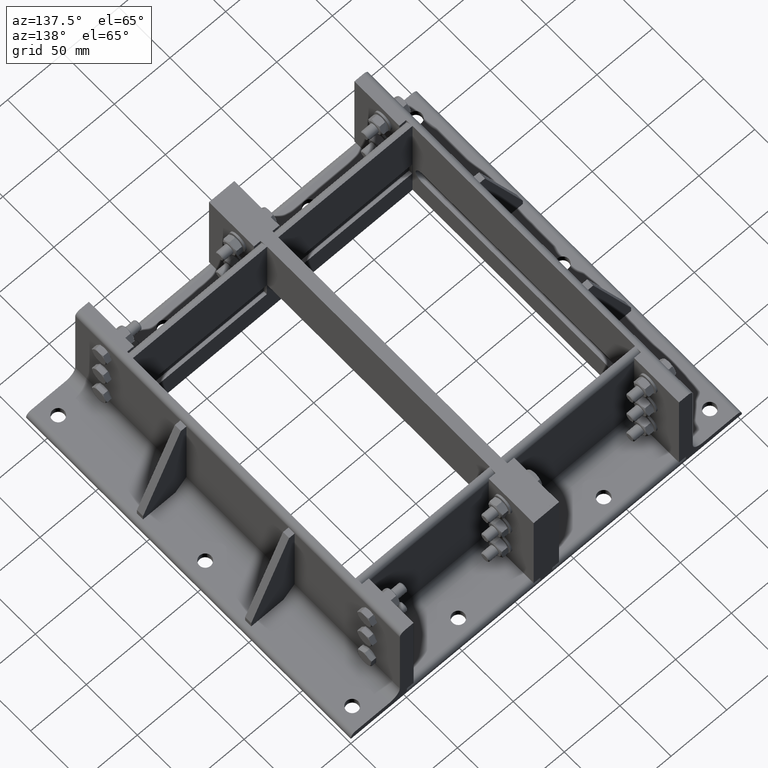
[diagram: clean part render]
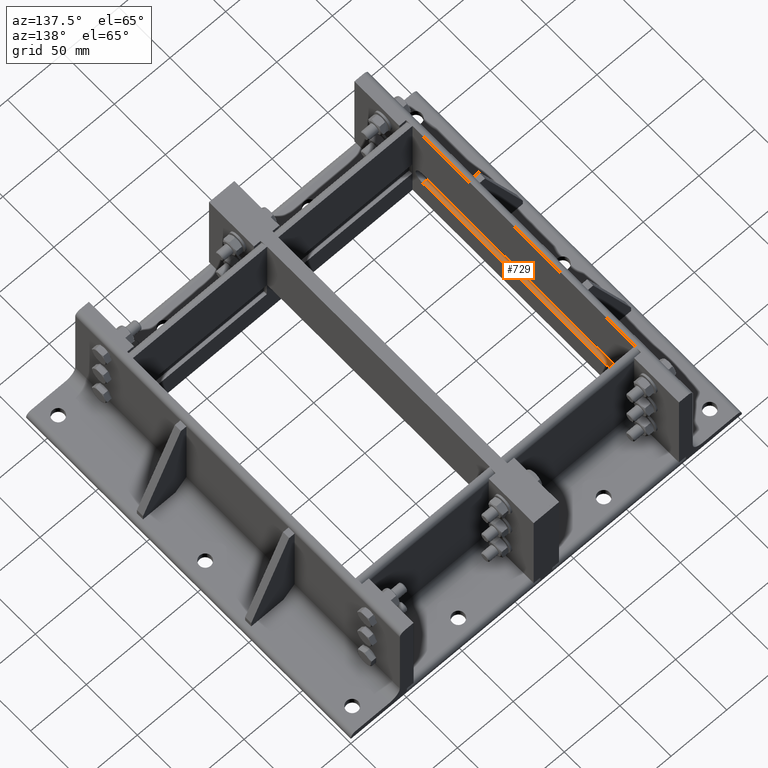
[diagram: same view with one face highlighted and labeled with its STEP entity id]
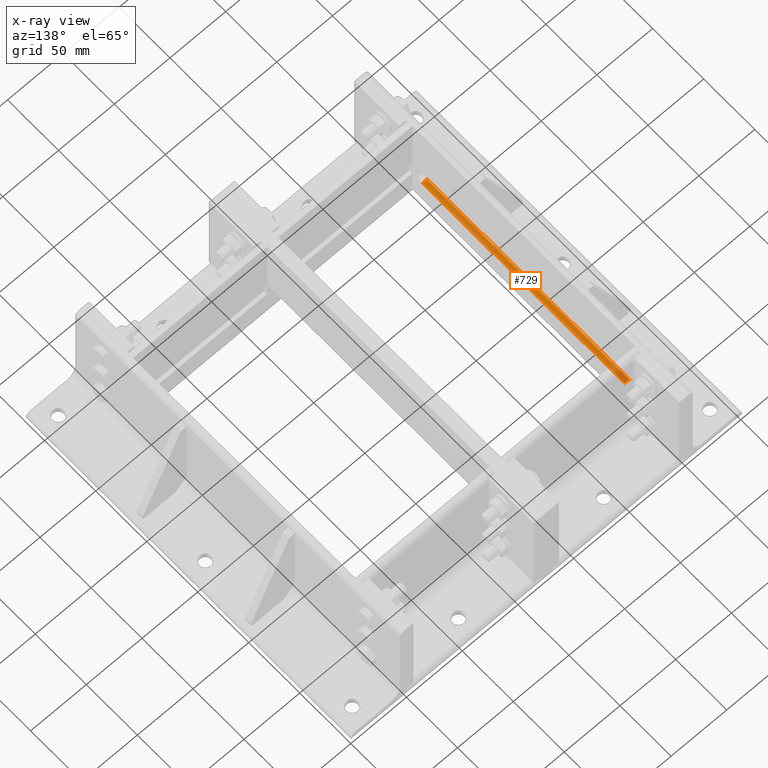
[diagram: x-ray of the same camera — body ghosted, the highlighted face saturated]
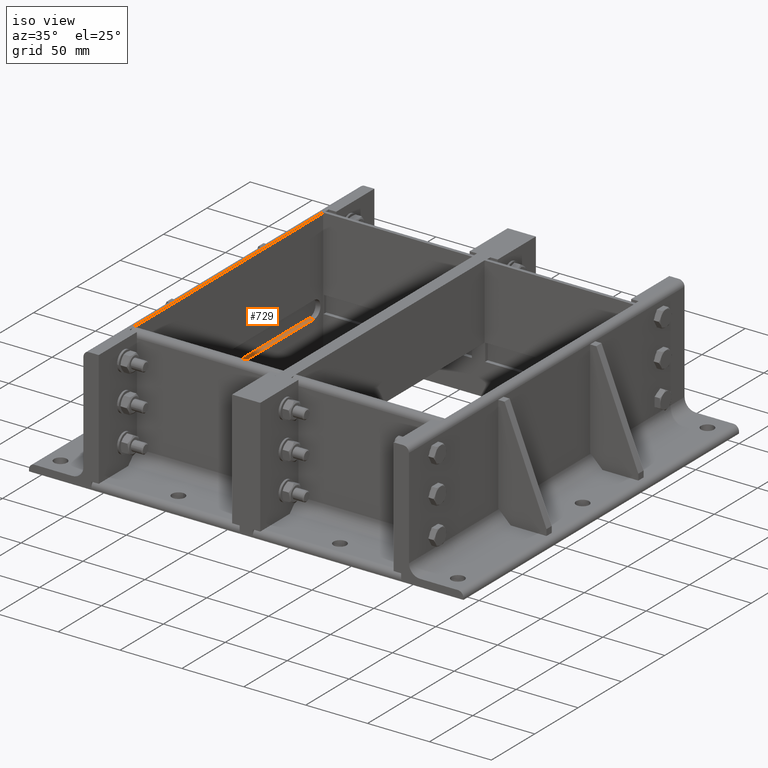
[diagram: same view with one face highlighted and labeled with its STEP entity id]
A machine part, auxiliary view. The second image highlights one B-rep face of the part: STEP entity #729.
The next image is the same camera in x-ray: the body ghosted, the highlighted face saturated — about 8% of this face is hidden behind the body in this view.
A second angle (iso view) of the same face is appended — the face is thin or edge-on in the first view.
In plain terms, the highlighted planar face has unit normal (0, 0, -1).
Its self-contained STEP definition (entity closure, byte-faithful):
#690=CARTESIAN_POINT('',(3.175238E-015,60.0,26.000000000000032));
#691=DIRECTION('',(0.0,0.0,-1.0));
#692=DIRECTION('',(0.0,1.0,0.0));
#693=AXIS2_PLACEMENT_3D('',#690,#691,#692);
#694=PLANE('',#693);
#695=CARTESIAN_POINT('',(3.175238E-015,60.0,26.000000000000032));
#696=VERTEX_POINT('',#695);
#697=CARTESIAN_POINT('',(3.175238E-015,258.0,26.0));
#698=VERTEX_POINT('',#697);
#699=CARTESIAN_POINT('',(3.175238E-015,60.0,26.000000000000032));
#700=DIRECTION('',(0.0,1.0,0.0));
#701=VECTOR('',#700,198.0);
#702=LINE('',#699,#701);
#703=EDGE_CURVE('',#696,#698,#702,.T.);
#704=ORIENTED_EDGE('',*,*,#703,.F.);
#705=CARTESIAN_POINT('',(4.000000000000004,60.0,26.000000000000032));
#706=VERTEX_POINT('',#705);
#707=CARTESIAN_POINT('',(3.175238E-015,60.0,26.000000000000032));
#708=DIRECTION('',(1.0,0.0,0.0));
#709=VECTOR('',#708,4.0);
#710=LINE('',#707,#709);
#711=EDGE_CURVE('',#696,#706,#710,.T.);
#712=ORIENTED_EDGE('',*,*,#711,.T.);
#713=CARTESIAN_POINT('',(4.000000000000004,258.0,26.0));
#714=VERTEX_POINT('',#713);
#715=CARTESIAN_POINT('',(4.000000000000004,60.0,26.000000000000032));
#716=DIRECTION('',(0.0,1.0,0.0));
#717=VECTOR('',#716,198.0);
#718=LINE('',#715,#717);
#719=EDGE_CURVE('',#706,#714,#718,.T.);
#720=ORIENTED_EDGE('',*,*,#719,.T.);
#721=CARTESIAN_POINT('',(3.175238E-015,258.0,26.0));
#722=DIRECTION('',(1.0,0.0,0.0));
#723=VECTOR('',#722,4.0);
#724=LINE('',#721,#723);
#725=EDGE_CURVE('',#698,#714,#724,.T.);
#726=ORIENTED_EDGE('',*,*,#725,.F.);
#727=EDGE_LOOP('',(#704,#712,#720,#726));
#728=FACE_OUTER_BOUND('',#727,.T.);
#729=ADVANCED_FACE('',(#728),#694,.F.);